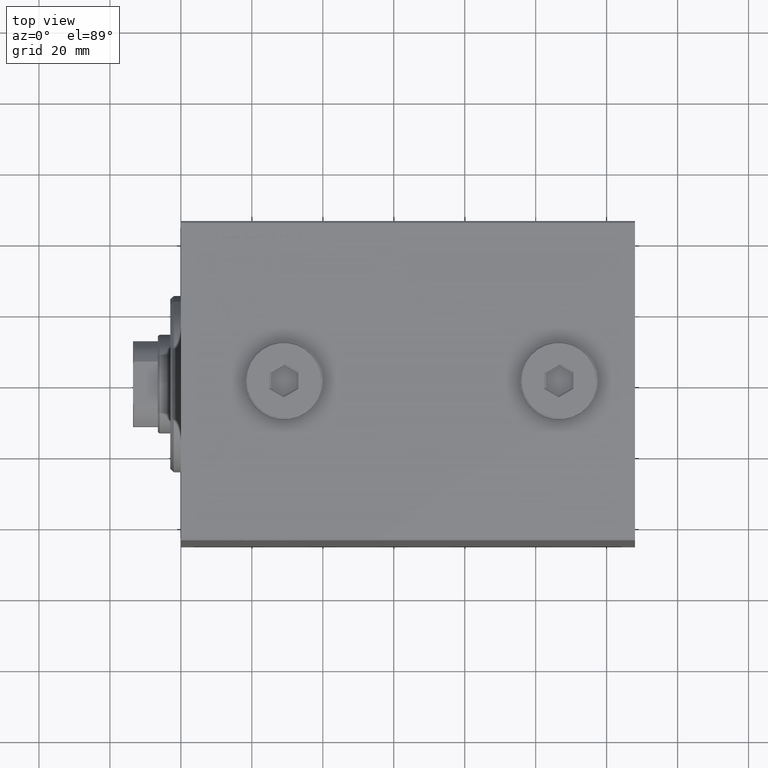
[diagram: clean part render]
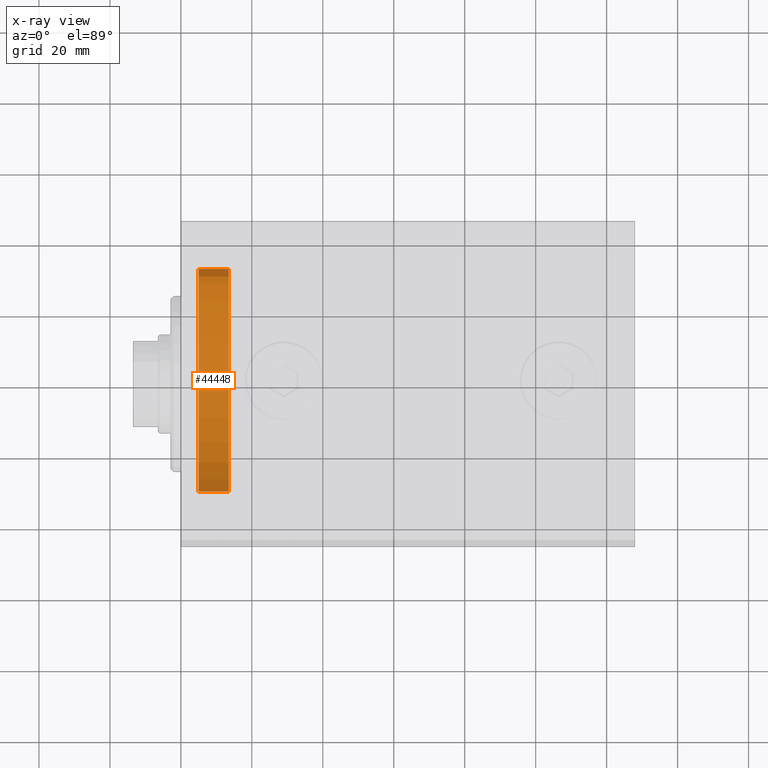
[diagram: x-ray — body ghosted, one internal face saturated and labeled with its STEP entity id]
A machine part, top view, then the same camera in x-ray: the body is ghosted and one INTERNAL B-rep face — a face not visible from any outside direction — is saturated and labeled: STEP entity #44448.
In plain terms, the highlighted cylindrical surface (partial cylindrical patch) has radius 32.5 mm, axis along (-1, 0, 0).
Its self-contained STEP definition (entity closure, byte-faithful):
#1686 = AXIS2_PLACEMENT_3D ( 'NONE', #35790, #17665, #10811 ) ;
#1701 = AXIS2_PLACEMENT_3D ( 'NONE', #20257, #34482, #9960 ) ;
#1866 = DIRECTION ( 'NONE',  ( 1.000000000000000000, -0.000000000000000000, -0.000000000000000000 ) ) ;
#2565 = VERTEX_POINT ( 'NONE', #44880 ) ;
#2566 = EDGE_LOOP ( 'NONE', ( #8755, #6115, #44009, #34190 ) ) ;
#3712 = CYLINDRICAL_SURFACE ( 'NONE', #1686, 32.50000000000000000 ) ;
#4278 = EDGE_CURVE ( 'NONE', #2565, #41348, #40450, .T. ) ;
#5195 = EDGE_CURVE ( 'NONE', #41348, #42398, #26548, .T. ) ;
#6115 = ORIENTED_EDGE ( 'NONE', *, *, #4278, .T. ) ;
#7428 = EDGE_CURVE ( 'NONE', #43232, #42398, #29372, .T. ) ;
#8755 = ORIENTED_EDGE ( 'NONE', *, *, #19821, .F. ) ;
#8834 = CARTESIAN_POINT ( 'NONE',  ( -13.50000000000000178, 3.980102097228898626E-15, 32.50000000000000000 ) ) ;
#9060 = DIRECTION ( 'NONE',  ( 1.000000000000000000, -0.000000000000000000, -0.000000000000000000 ) ) ;
#9960 = DIRECTION ( 'NONE',  ( 0.000000000000000000, 0.000000000000000000, 1.000000000000000000 ) ) ;
#10811 = DIRECTION ( 'NONE',  ( 0.000000000000000000, 0.000000000000000000, -1.000000000000000000 ) ) ;
#12385 = CARTESIAN_POINT ( 'NONE',  ( -13.50000000000000178, 0.000000000000000000, -32.50000000000000000 ) ) ;
#15316 = CARTESIAN_POINT ( 'NONE',  ( -13.50000000000000178, 0.000000000000000000, -32.50000000000000000 ) ) ;
#17665 = DIRECTION ( 'NONE',  ( 1.000000000000000000, -0.000000000000000000, -0.000000000000000000 ) ) ;
#19821 = EDGE_CURVE ( 'NONE', #2565, #43232, #23207, .T. ) ;
#20257 = CARTESIAN_POINT ( 'NONE',  ( -5.000000000000000000, 0.000000000000000000, 0.000000000000000000 ) ) ;
#23207 = CIRCLE ( 'NONE', #37125, 32.50000000000000000 ) ;
#24782 = FACE_OUTER_BOUND ( 'NONE', #2566, .T. ) ;
#26548 = CIRCLE ( 'NONE', #1701, 32.50000000000000000 ) ;
#28708 = VECTOR ( 'NONE', #9060, 1000.000000000000000 ) ;
#29087 = CARTESIAN_POINT ( 'NONE',  ( -5.000000000000000000, 0.000000000000000000, -32.50000000000000000 ) ) ;
#29372 = LINE ( 'NONE', #12385, #35293 ) ;
#29595 = CARTESIAN_POINT ( 'NONE',  ( -5.000000000000000000, 3.980102097228898626E-15, 32.50000000000000000 ) ) ;
#33331 = CARTESIAN_POINT ( 'NONE',  ( -13.50000000000000178, 0.000000000000000000, 0.000000000000000000 ) ) ;
#34190 = ORIENTED_EDGE ( 'NONE', *, *, #7428, .F. ) ;
#34482 = DIRECTION ( 'NONE',  ( -1.000000000000000000, 0.000000000000000000, 0.000000000000000000 ) ) ;
#35293 = VECTOR ( 'NONE', #1866, 1000.000000000000000 ) ;
#35790 = CARTESIAN_POINT ( 'NONE',  ( -13.50000000000000178, 0.000000000000000000, 0.000000000000000000 ) ) ;
#37125 = AXIS2_PLACEMENT_3D ( 'NONE', #33331, #43639, #40659 ) ;
#40450 = LINE ( 'NONE', #8834, #28708 ) ;
#40659 = DIRECTION ( 'NONE',  ( 0.000000000000000000, 0.000000000000000000, 1.000000000000000000 ) ) ;
#41348 = VERTEX_POINT ( 'NONE', #29595 ) ;
#42398 = VERTEX_POINT ( 'NONE', #29087 ) ;
#43232 = VERTEX_POINT ( 'NONE', #15316 ) ;
#43639 = DIRECTION ( 'NONE',  ( -1.000000000000000000, 0.000000000000000000, 0.000000000000000000 ) ) ;
#44009 = ORIENTED_EDGE ( 'NONE', *, *, #5195, .T. ) ;
#44448 = ADVANCED_FACE ( 'NONE', ( #24782 ), #3712, .T. ) ;
#44880 = CARTESIAN_POINT ( 'NONE',  ( -13.50000000000000178, 3.980102097228898626E-15, 32.50000000000000000 ) ) ;